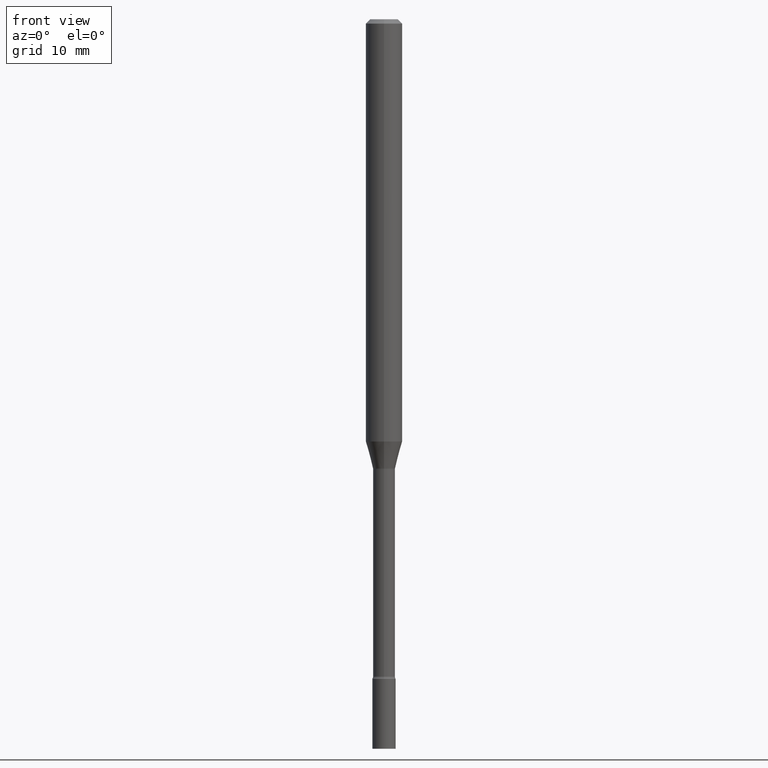
[diagram: clean part render]
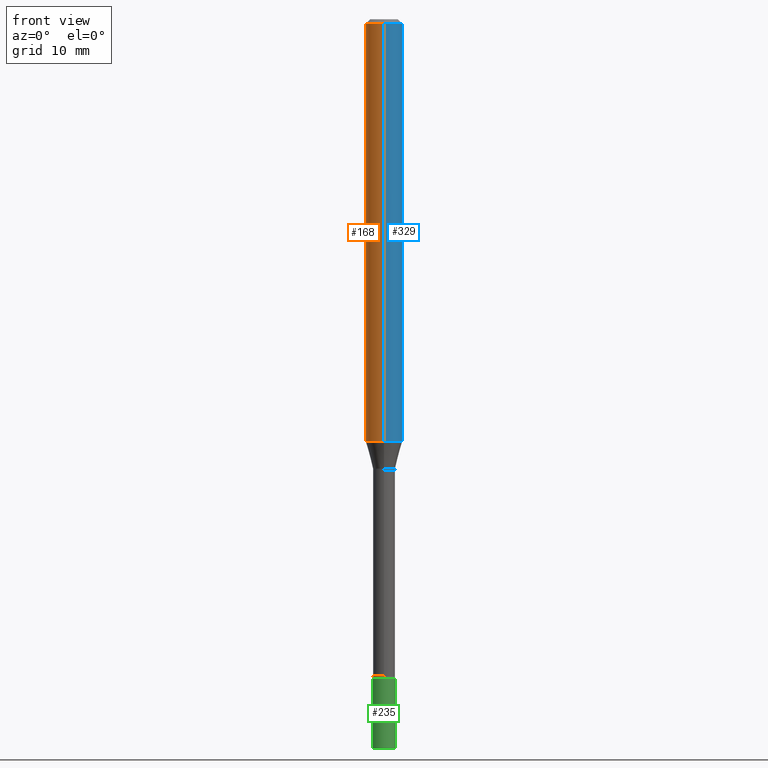
[diagram: same view with three faces highlighted in distinct colors, each labeled with its STEP entity id]
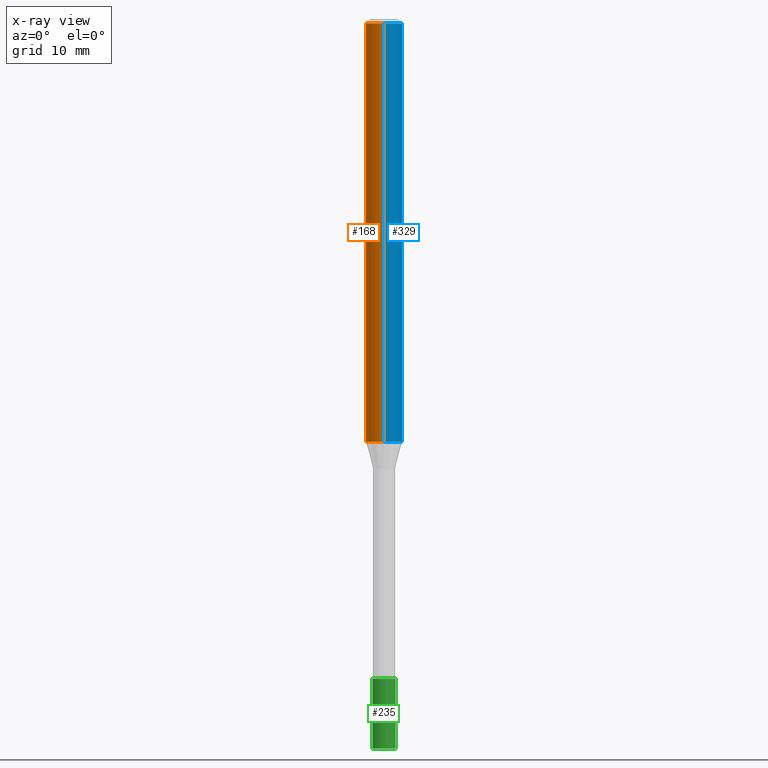
[diagram: x-ray of the same camera — body ghosted, the three highlighted faces saturated]
A machine part, front view with three faces highlighted in distinct colors.
The next image is the same camera in x-ray (body ghosted, the three faces saturated) — at least one of them is partly hidden behind the body in this view.
Their STEP definitions:

[orange] entity #168 — the highlighted cylindrical surface (edge-blend (fillet) strip) has radius 1.5875 mm, axis along (-0, 0, 1).
#35 = ORIENTED_EDGE ( 'NONE', *, *, #432, .T. ) ;
#37 = CARTESIAN_POINT ( 'NONE',  ( -4.364351673553912750E-16, -0.06250000000000005551, -0.01499999999999981209 ) ) ;
#56 = EDGE_CURVE ( 'NONE', #387, #146, #492, .T. ) ;
#59 = EDGE_LOOP ( 'NONE', ( #276, #342, #35, #296 ) ) ;
#146 = VERTEX_POINT ( 'NONE', #37 ) ;
#147 = DIRECTION ( 'NONE',  ( -6.982962677686265922E-15, -1.000000000000000000, 3.483106191921935554E-15 ) ) ;
#148 = AXIS2_PLACEMENT_3D ( 'NONE', #278, #151, #464 ) ;
#151 = DIRECTION ( 'NONE',  ( -2.445488194915675677E-29, 3.491453573077475482E-15, 1.000000000000000000 ) ) ;
#154 = CARTESIAN_POINT ( 'NONE',  ( 4.440892098500625669E-16, 0.06250000000000000000, -2.182158483173421929E-16 ) ) ;
#164 = CIRCLE ( 'NONE', #171, 0.06250000000000000000 ) ;
#168 = ADVANCED_FACE ( 'NONE', ( #477 ), #520, .T. ) ;
#171 = AXIS2_PLACEMENT_3D ( 'NONE', #283, #443, #472 ) ;
#225 = EDGE_CURVE ( 'NONE', #287, #387, #275, .T. ) ;
#231 = CARTESIAN_POINT ( 'NONE',  ( 4.440892098500982135E-16, 0.06249999999999995143, -0.01500000000000024751 ) ) ;
#247 = CARTESIAN_POINT ( 'NONE',  ( 4.440892098500977205E-16, 0.06249999999999491379, -1.447071934891535516 ) ) ;
#275 = LINE ( 'NONE', #154, #310 ) ;
#276 = ORIENTED_EDGE ( 'NONE', *, *, #225, .F. ) ;
#278 = CARTESIAN_POINT ( 'NONE',  ( 0.000000000000000000, 0.000000000000000000, 0.000000000000000000 ) ) ;
#283 = CARTESIAN_POINT ( 'NONE',  ( 3.538797333971034829E-29, -5.052384477577187527E-15, -1.447071934891535294 ) ) ;
#285 = CARTESIAN_POINT ( 'NONE',  ( -4.364351673553565651E-16, -0.06250000000000509315, -1.447071934891535072 ) ) ;
#287 = VERTEX_POINT ( 'NONE', #247 ) ;
#296 = ORIENTED_EDGE ( 'NONE', *, *, #56, .F. ) ;
#308 = CARTESIAN_POINT ( 'NONE',  ( -4.364351673553916201E-16, -0.06250000000000000000, 2.182158483173421929E-16 ) ) ;
#310 = VECTOR ( 'NONE', #438, 39.37007874015748143 ) ;
#316 = VERTEX_POINT ( 'NONE', #285 ) ;
#319 = AXIS2_PLACEMENT_3D ( 'NONE', #336, #378, #147 ) ;
#336 = CARTESIAN_POINT ( 'NONE',  ( 3.668232292373520995E-31, -5.237180359616224094E-17, -0.01500000000000003067 ) ) ;
#342 = ORIENTED_EDGE ( 'NONE', *, *, #360, .T. ) ;
#356 = VECTOR ( 'NONE', #470, 39.37007874015748143 ) ;
#360 = EDGE_CURVE ( 'NONE', #287, #316, #164, .T. ) ;
#378 = DIRECTION ( 'NONE',  ( -2.445488194915675677E-29, 3.491453573077475482E-15, 1.000000000000000000 ) ) ;
#387 = VERTEX_POINT ( 'NONE', #231 ) ;
#432 = EDGE_CURVE ( 'NONE', #316, #146, #482, .T. ) ;
#438 = DIRECTION ( 'NONE',  ( -2.445488194915675677E-29, 3.491453573077475087E-15, 1.000000000000000000 ) ) ;
#443 = DIRECTION ( 'NONE',  ( -2.445488194915675677E-29, 3.491453573077475482E-15, 1.000000000000000000 ) ) ;
#464 = DIRECTION ( 'NONE',  ( -6.982962677686265922E-15, -1.000000000000000000, 3.491453573077475087E-15 ) ) ;
#470 = DIRECTION ( 'NONE',  ( -2.445488194915675677E-29, 3.491453573077475087E-15, 1.000000000000000000 ) ) ;
#472 = DIRECTION ( 'NONE',  ( -6.982962677686265922E-15, -1.000000000000000000, 4.370956789862821150E-15 ) ) ;
#477 = FACE_OUTER_BOUND ( 'NONE', #59, .T. ) ;
#482 = LINE ( 'NONE', #308, #356 ) ;
#492 = CIRCLE ( 'NONE', #319, 0.06250000000000000000 ) ;
#520 = CYLINDRICAL_SURFACE ( 'NONE', #148, 0.06250000000000000000 ) ;

[blue] entity #329 — the highlighted cylindrical surface (edge-blend (fillet) strip) has radius 1.5875 mm, axis along (-0, 0, 1).
#10 = DIRECTION ( 'NONE',  ( -6.982962677686265922E-15, -1.000000000000000000, 3.491453573077475087E-15 ) ) ;
#11 = DIRECTION ( 'NONE',  ( -2.445488194915675677E-29, 3.491453573077475482E-15, 1.000000000000000000 ) ) ;
#37 = CARTESIAN_POINT ( 'NONE',  ( -4.364351673553912750E-16, -0.06250000000000005551, -0.01499999999999981209 ) ) ;
#58 = AXIS2_PLACEMENT_3D ( 'NONE', #437, #159, #265 ) ;
#79 = ORIENTED_EDGE ( 'NONE', *, *, #225, .T. ) ;
#92 = EDGE_CURVE ( 'NONE', #146, #387, #311, .T. ) ;
#93 = ORIENTED_EDGE ( 'NONE', *, *, #92, .F. ) ;
#104 = DIRECTION ( 'NONE',  ( -6.982962677686265922E-15, -1.000000000000000000, 3.483106191921935554E-15 ) ) ;
#115 = AXIS2_PLACEMENT_3D ( 'NONE', #488, #368, #104 ) ;
#142 = ORIENTED_EDGE ( 'NONE', *, *, #432, .F. ) ;
#145 = EDGE_LOOP ( 'NONE', ( #335, #79, #93, #142 ) ) ;
#146 = VERTEX_POINT ( 'NONE', #37 ) ;
#154 = CARTESIAN_POINT ( 'NONE',  ( 4.440892098500625669E-16, 0.06250000000000000000, -2.182158483173421929E-16 ) ) ;
#159 = DIRECTION ( 'NONE',  ( -2.445488194915675677E-29, 3.491453573077475482E-15, 1.000000000000000000 ) ) ;
#208 = CIRCLE ( 'NONE', #58, 0.06250000000000000000 ) ;
#225 = EDGE_CURVE ( 'NONE', #287, #387, #275, .T. ) ;
#231 = CARTESIAN_POINT ( 'NONE',  ( 4.440892098500982135E-16, 0.06249999999999995143, -0.01500000000000024751 ) ) ;
#247 = CARTESIAN_POINT ( 'NONE',  ( 4.440892098500977205E-16, 0.06249999999999491379, -1.447071934891535516 ) ) ;
#265 = DIRECTION ( 'NONE',  ( -6.982962677686265922E-15, -1.000000000000000000, 4.370956789862821150E-15 ) ) ;
#275 = LINE ( 'NONE', #154, #310 ) ;
#285 = CARTESIAN_POINT ( 'NONE',  ( -4.364351673553565651E-16, -0.06250000000000509315, -1.447071934891535072 ) ) ;
#287 = VERTEX_POINT ( 'NONE', #247 ) ;
#308 = CARTESIAN_POINT ( 'NONE',  ( -4.364351673553916201E-16, -0.06250000000000000000, 2.182158483173421929E-16 ) ) ;
#310 = VECTOR ( 'NONE', #438, 39.37007874015748143 ) ;
#311 = CIRCLE ( 'NONE', #115, 0.06250000000000000000 ) ;
#312 = AXIS2_PLACEMENT_3D ( 'NONE', #448, #11, #10 ) ;
#316 = VERTEX_POINT ( 'NONE', #285 ) ;
#323 = FACE_OUTER_BOUND ( 'NONE', #145, .T. ) ;
#329 = ADVANCED_FACE ( 'NONE', ( #323 ), #362, .T. ) ;
#335 = ORIENTED_EDGE ( 'NONE', *, *, #366, .T. ) ;
#356 = VECTOR ( 'NONE', #470, 39.37007874015748143 ) ;
#362 = CYLINDRICAL_SURFACE ( 'NONE', #312, 0.06250000000000000000 ) ;
#366 = EDGE_CURVE ( 'NONE', #316, #287, #208, .T. ) ;
#368 = DIRECTION ( 'NONE',  ( -2.445488194915675677E-29, 3.491453573077475482E-15, 1.000000000000000000 ) ) ;
#387 = VERTEX_POINT ( 'NONE', #231 ) ;
#432 = EDGE_CURVE ( 'NONE', #316, #146, #482, .T. ) ;
#437 = CARTESIAN_POINT ( 'NONE',  ( 3.538797333971034829E-29, -5.052384477577187527E-15, -1.447071934891535294 ) ) ;
#438 = DIRECTION ( 'NONE',  ( -2.445488194915675677E-29, 3.491453573077475087E-15, 1.000000000000000000 ) ) ;
#448 = CARTESIAN_POINT ( 'NONE',  ( 0.000000000000000000, 0.000000000000000000, 0.000000000000000000 ) ) ;
#470 = DIRECTION ( 'NONE',  ( -2.445488194915675677E-29, 3.491453573077475087E-15, 1.000000000000000000 ) ) ;
#482 = LINE ( 'NONE', #308, #356 ) ;
#488 = CARTESIAN_POINT ( 'NONE',  ( 3.668232292373520995E-31, -5.237180359616224094E-17, -0.01500000000000003067 ) ) ;

[green] entity #235 — the highlighted cylindrical surface (edge-blend (fillet) strip) has radius 1.016 mm, axis along (-0, 0, 1).
#3 = DIRECTION ( 'NONE',  ( -2.445468806185136597E-29, 3.491481338843145583E-15, 1.000000000000000000 ) ) ;
#5 = VECTOR ( 'NONE', #238, 39.37007874015748143 ) ;
#30 = CARTESIAN_POINT ( 'NONE',  ( 0.04000000000000000083, -2.793185071074506290E-16, 1.950470710318374387E-30 ) ) ;
#47 = LINE ( 'NONE', #118, #5 ) ;
#54 = AXIS2_PLACEMENT_3D ( 'NONE', #402, #3, #124 ) ;
#70 = DIRECTION ( 'NONE',  ( 1.000000000000000000, -6.982962677686259611E-15, 0.000000000000000000 ) ) ;
#94 = CIRCLE ( 'NONE', #506, 0.04000000000000000083 ) ;
#113 = CIRCLE ( 'NONE', #54, 0.04000000000000000083 ) ;
#114 = CARTESIAN_POINT ( 'NONE',  ( 0.04000000000000000083, -8.170066332892960135E-15, -2.260000000000000231 ) ) ;
#118 = CARTESIAN_POINT ( 'NONE',  ( -0.04000000000000000083, 2.842170943040400803E-16, -1.967574036101962509E-30 ) ) ;
#124 = DIRECTION ( 'NONE',  ( 1.000000000000000000, -6.982962677686259611E-15, 0.000000000000000000 ) ) ;
#133 = ORIENTED_EDGE ( 'NONE', *, *, #481, .T. ) ;
#141 = EDGE_CURVE ( 'NONE', #365, #451, #204, .T. ) ;
#165 = VERTEX_POINT ( 'NONE', #193 ) ;
#169 = ORIENTED_EDGE ( 'NONE', *, *, #209, .F. ) ;
#182 = DIRECTION ( 'NONE',  ( -2.445468806185136597E-29, 3.491481338843145583E-15, 1.000000000000000000 ) ) ;
#192 = ORIENTED_EDGE ( 'NONE', *, *, #141, .T. ) ;
#193 = CARTESIAN_POINT ( 'NONE',  ( -0.04000000000000000083, -8.025508492142646404E-15, -2.500000000000000000 ) ) ;
#204 = LINE ( 'NONE', #30, #449 ) ;
#209 = EDGE_CURVE ( 'NONE', #165, #480, #47, .T. ) ;
#234 = CYLINDRICAL_SURFACE ( 'NONE', #330, 0.04000000000000000083 ) ;
#235 = ADVANCED_FACE ( 'NONE', ( #392 ), #234, .T. ) ;
#238 = DIRECTION ( 'NONE',  ( -2.445468806185136877E-29, 3.491481338843145188E-15, 1.000000000000000000 ) ) ;
#245 = EDGE_CURVE ( 'NONE', #480, #451, #113, .T. ) ;
#272 = CARTESIAN_POINT ( 'NONE',  ( 0.04000000000000000083, -9.008021854215314980E-15, -2.500000000000000000 ) ) ;
#280 = ORIENTED_EDGE ( 'NONE', *, *, #245, .F. ) ;
#281 = DIRECTION ( 'NONE',  ( -2.445468806185136597E-29, 3.491481338843145583E-15, 1.000000000000000000 ) ) ;
#330 = AXIS2_PLACEMENT_3D ( 'NONE', #484, #281, #406 ) ;
#331 = EDGE_LOOP ( 'NONE', ( #169, #133, #192, #280 ) ) ;
#334 = CARTESIAN_POINT ( 'NONE',  ( -0.04000000000000000083, -8.025508492142646404E-15, -2.260000000000000231 ) ) ;
#365 = VERTEX_POINT ( 'NONE', #272 ) ;
#392 = FACE_OUTER_BOUND ( 'NONE', #331, .T. ) ;
#402 = CARTESIAN_POINT ( 'NONE',  ( 5.526759501978408888E-29, -7.890747825785510097E-15, -2.260000000000000231 ) ) ;
#406 = DIRECTION ( 'NONE',  ( 1.000000000000000000, -6.982962677686265922E-15, 4.876176775795935793E-29 ) ) ;
#449 = VECTOR ( 'NONE', #516, 39.37007874015748143 ) ;
#451 = VERTEX_POINT ( 'NONE', #114 ) ;
#480 = VERTEX_POINT ( 'NONE', #334 ) ;
#481 = EDGE_CURVE ( 'NONE', #165, #365, #94, .T. ) ;
#484 = CARTESIAN_POINT ( 'NONE',  ( 0.000000000000000000, 0.000000000000000000, 0.000000000000000000 ) ) ;
#499 = CARTESIAN_POINT ( 'NONE',  ( 6.113672015462842613E-29, -8.728703347107864943E-15, -2.500000000000000000 ) ) ;
#506 = AXIS2_PLACEMENT_3D ( 'NONE', #499, #182, #70 ) ;
#516 = DIRECTION ( 'NONE',  ( -2.445468806185136877E-29, 3.491481338843145188E-15, 1.000000000000000000 ) ) ;